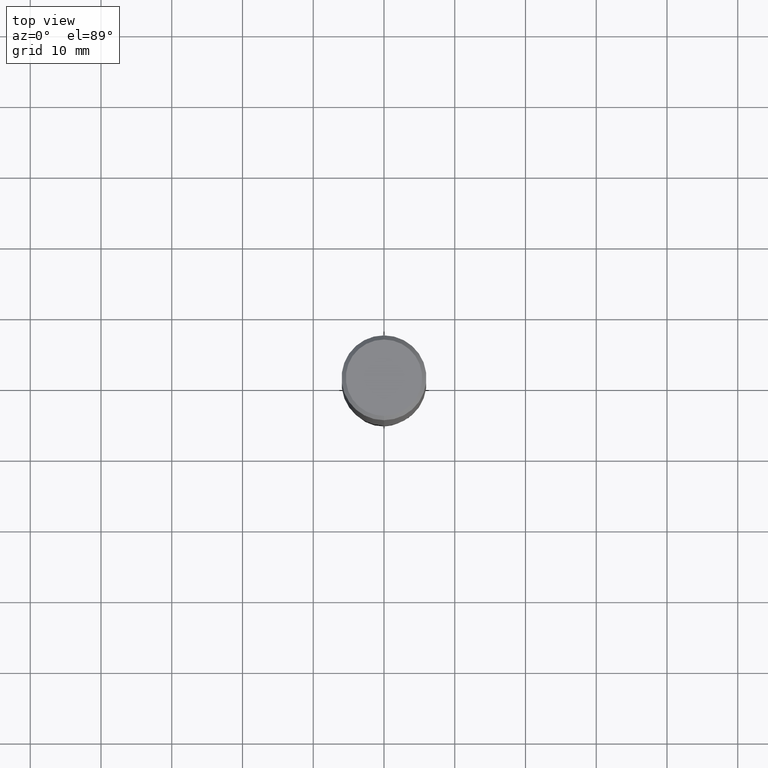
[diagram: clean part render]
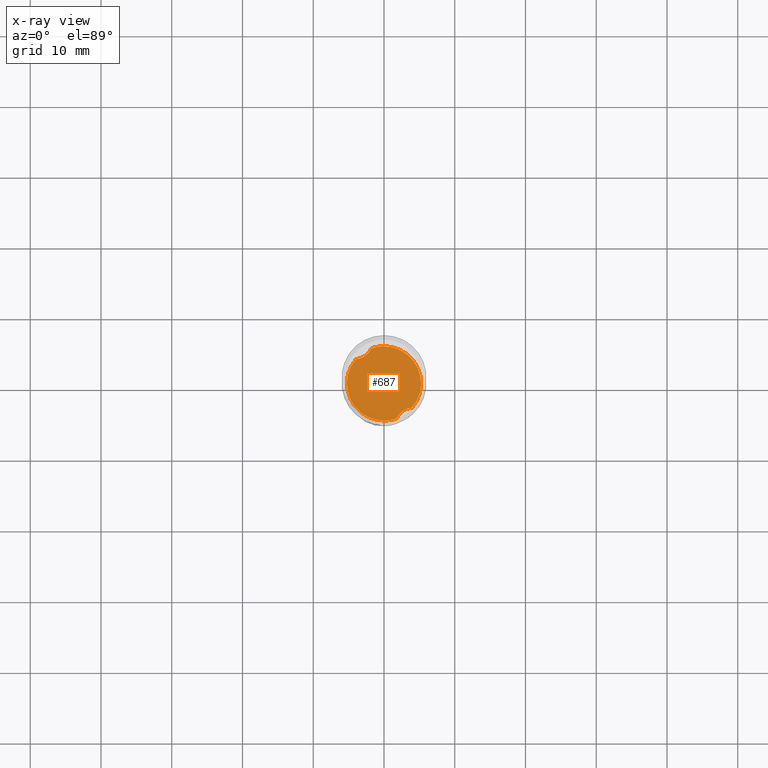
[diagram: x-ray — body ghosted, one internal face saturated and labeled with its STEP entity id]
A machine part, top view, then the same camera in x-ray: the body is ghosted and one INTERNAL B-rep face — a face not visible from any outside direction — is saturated and labeled: STEP entity #687.
In plain terms, the highlighted planar face has unit normal (-0, 0, 1).
Its self-contained STEP definition (entity closure, byte-faithful):
#317=EDGE_CURVE('',#751,#545,#832,.T.);
#353=EDGE_CURVE('',#451,#545,#870,.T.);
#387=VERTEX_POINT('',#906);
#429=EDGE_CURVE('',#765,#751,#955,.T.);
#451=VERTEX_POINT('',#977);
#545=VERTEX_POINT('',#1082);
#593=EDGE_CURVE('',#689,#387,#1136,.T.);
#675=EDGE_CURVE('',#765,#387,#1224,.T.);
#687=ADVANCED_FACE('',(#1237),#1238,.T.);
#689=VERTEX_POINT('',#1240);
#751=VERTEX_POINT('',#1311);
#757=EDGE_CURVE('',#451,#689,#1317,.T.);
#765=VERTEX_POINT('',#1325);
#832=CIRCLE('',#1533,5.2499);
#870=B_SPLINE_CURVE_WITH_KNOTS('',3,(#1809,#1810,#1811,#1812,#1813,#1814,#1815,#1816,#1817,#1818,#1819,#1820),.UNSPECIFIED.,.F.,.F.,(4,2,2,2,2,4),(0.0,1.13958031297388,2.18163180374909,3.23313880667419,3.87602636836548,4.54611177569056),.UNSPECIFIED.);
#906=CARTESIAN_POINT('',(-3.97808055895845,3.42583202688585,-47.0));
#955=CIRCLE('',#2561,5.2499);
#977=CARTESIAN_POINT('',(1.78826262263326,-4.93594639380259,-47.0));
#1082=CARTESIAN_POINT('',(3.97808055895845,-3.42583202688585,-47.0));
#1136=CIRCLE('',#3245,5.2499);
#1224=B_SPLINE_CURVE_WITH_KNOTS('',3,(#3622,#3623,#3624,#3625,#3626,#3627,#3628,#3629,#3630,#3631,#3632,#3633),.UNSPECIFIED.,.F.,.F.,(4,2,2,2,2,4),(0.0,1.13958031297381,2.18163180374913,3.23313880667438,3.87602636836574,4.54611177569092),.UNSPECIFIED.);
#1237=FACE_OUTER_BOUND('',#3756,.T.);
#1238=PLANE('',#3757);
#1240=CARTESIAN_POINT('',(6.43058080264226E-016,-5.2499,-47.0));
#1311=CARTESIAN_POINT('',(-6.43043707180667E-016,5.2499,-47.0));
#1317=CIRCLE('',#5227,5.2499);
#1325=CARTESIAN_POINT('',(-1.78826262263326,4.93594639380259,-47.0));
#1533=AXIS2_PLACEMENT_3D('',#5362,#5363,#5364);
#1809=CARTESIAN_POINT('',(1.63999516186185,-5.2999,-47.0));
#1810=CARTESIAN_POINT('',(1.76052304776198,-4.93966850834781,-47.0));
#1811=CARTESIAN_POINT('',(1.94437092247341,-4.60666086251076,-46.9999999999855));
#1812=CARTESIAN_POINT('',(2.42170221921098,-4.0601269603832,-46.9999999999855));
#1813=CARTESIAN_POINT('',(2.69624092720099,-3.84850686180773,-47.0000000000008));
#1814=CARTESIAN_POINT('',(3.32055186481261,-3.54073805583285,-47.0000000000008));
#1815=CARTESIAN_POINT('',(3.65981357641902,-3.45108629432009,-47.0000000000001));
#1816=CARTESIAN_POINT('',(4.2220213834813,-3.40619094229731,-47.0000000000001));
#1817=CARTESIAN_POINT('',(4.43647779411802,-3.41243852712337,-47.0));
#1818=CARTESIAN_POINT('',(4.87014098296781,-3.46801668786865,-47.0));
#1819=CARTESIAN_POINT('',(5.08810638298472,-3.51901008139379,-47.0));
#1820=CARTESIAN_POINT('',(5.2999,-3.5895424336459,-47.0));
#2561=AXIS2_PLACEMENT_3D('',#5503,#5504,#5505);
#3245=AXIS2_PLACEMENT_3D('',#5736,#5737,#5738);
#3622=CARTESIAN_POINT('',(-1.63999516186185,5.2999,-47.0));
#3623=CARTESIAN_POINT('',(-1.76052304776197,4.93966850834784,-47.0));
#3624=CARTESIAN_POINT('',(-1.9443709224734,4.60666086251076,-46.9999999999855));
#3625=CARTESIAN_POINT('',(-2.42170221921102,4.06012696038315,-46.9999999999855));
#3626=CARTESIAN_POINT('',(-2.69624092720102,3.84850686180772,-47.0000000000008));
#3627=CARTESIAN_POINT('',(-3.3205518648126,3.54073805583287,-47.0000000000008));
#3628=CARTESIAN_POINT('',(-3.65981357641899,3.4510862943201,-47.0000000000001));
#3629=CARTESIAN_POINT('',(-4.2220213834813,3.4061909422973,-47.0000000000001));
#3630=CARTESIAN_POINT('',(-4.43647779411803,3.41243852712337,-47.0));
#3631=CARTESIAN_POINT('',(-4.8701409829678,3.46801668786865,-47.0));
#3632=CARTESIAN_POINT('',(-5.08810638298472,3.51901008139378,-47.0));
#3633=CARTESIAN_POINT('',(-5.2999,3.5895424336459,-47.0));
#3756=EDGE_LOOP('',(#5837,#5838,#5839,#5840,#5841,#5842));
#3757=AXIS2_PLACEMENT_3D('',#5843,#5844,#5845);
#5227=AXIS2_PLACEMENT_3D('',#5943,#5944,#5945);
#5362=CARTESIAN_POINT('',(0.0,0.0,-47.0));
#5363=DIRECTION('',(0.0,0.0,-1.0));
#5364=DIRECTION('',(0.0,1.0,0.0));
#5503=CARTESIAN_POINT('',(0.0,0.0,-47.0));
#5504=DIRECTION('',(0.0,0.0,-1.0));
#5505=DIRECTION('',(0.0,1.0,0.0));
#5736=CARTESIAN_POINT('',(0.0,0.0,-47.0));
#5737=DIRECTION('',(0.0,0.0,-1.0));
#5738=DIRECTION('',(0.0,1.0,0.0));
#5837=ORIENTED_EDGE('',*,*,#353,.T.);
#5838=ORIENTED_EDGE('',*,*,#317,.F.);
#5839=ORIENTED_EDGE('',*,*,#429,.F.);
#5840=ORIENTED_EDGE('',*,*,#675,.T.);
#5841=ORIENTED_EDGE('',*,*,#593,.F.);
#5842=ORIENTED_EDGE('',*,*,#757,.F.);
#5843=CARTESIAN_POINT('',(0.0,2.62495,-47.0));
#5844=DIRECTION('',(-0.0,0.0,1.0));
#5845=DIRECTION('',(0.0,-1.0,0.0));
#5943=CARTESIAN_POINT('',(0.0,0.0,-47.0));
#5944=DIRECTION('',(0.0,0.0,-1.0));
#5945=DIRECTION('',(0.0,1.0,0.0));